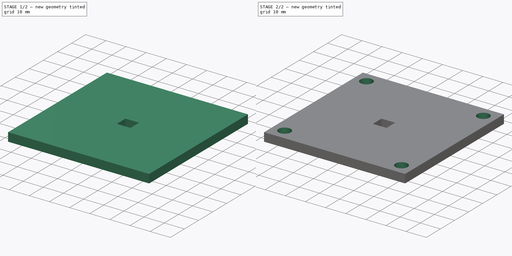
[diagram: build sequence overview — one tinted view per stage of 2, left to right]
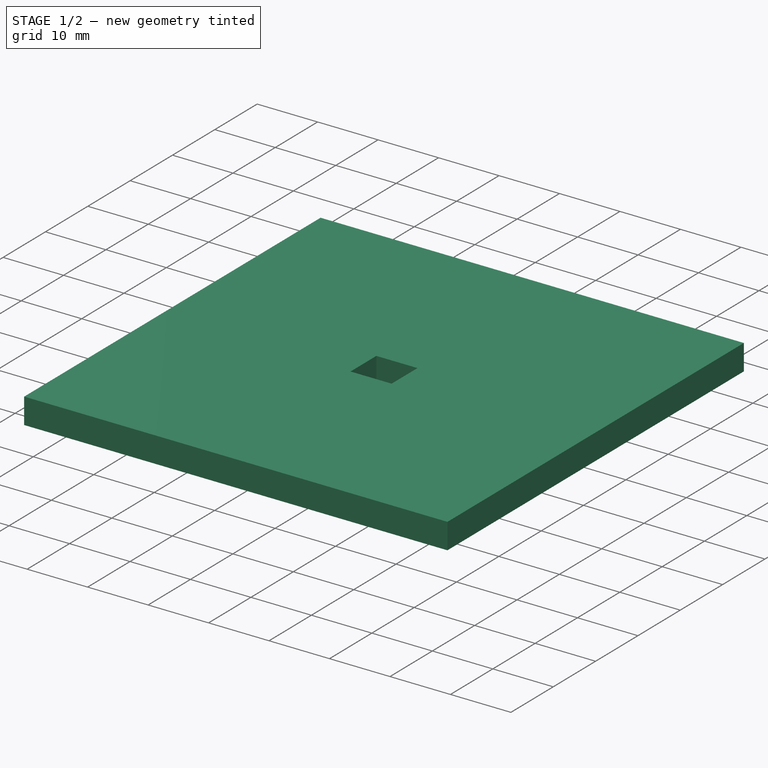
[diagram: stage 1 of 2 — iso view after this stage's code; geometry added in this stage tinted green]
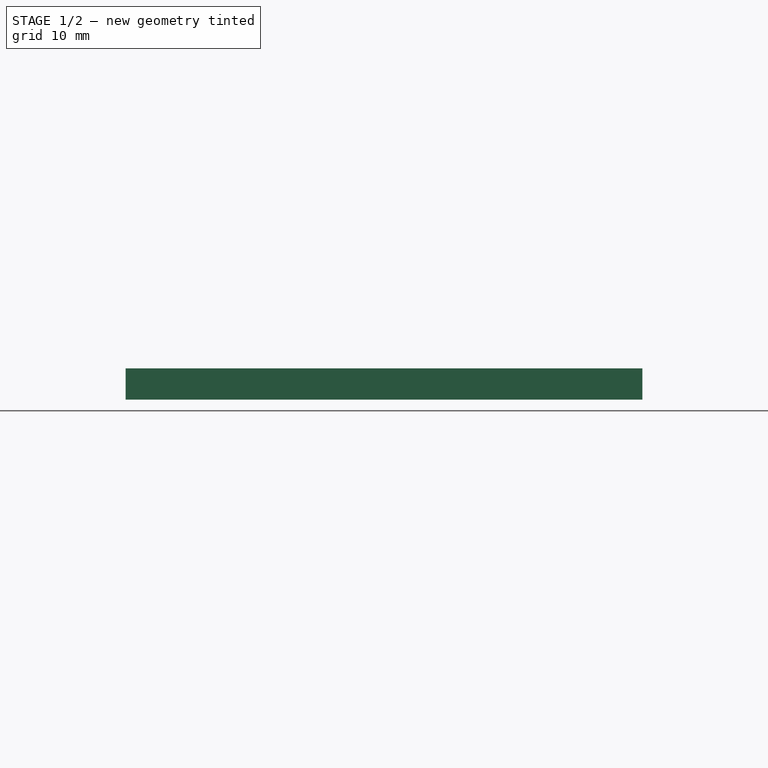
[diagram: stage 1 of 2 — front view after this stage's code; geometry added in this stage tinted green]
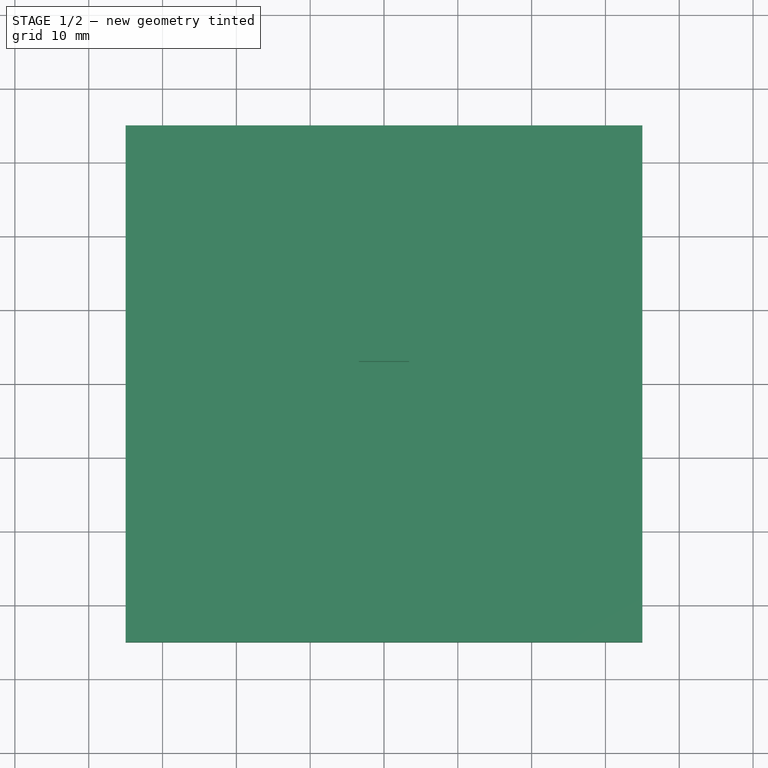
[diagram: stage 1 of 2 — top view after this stage's code; geometry added in this stage tinted green]
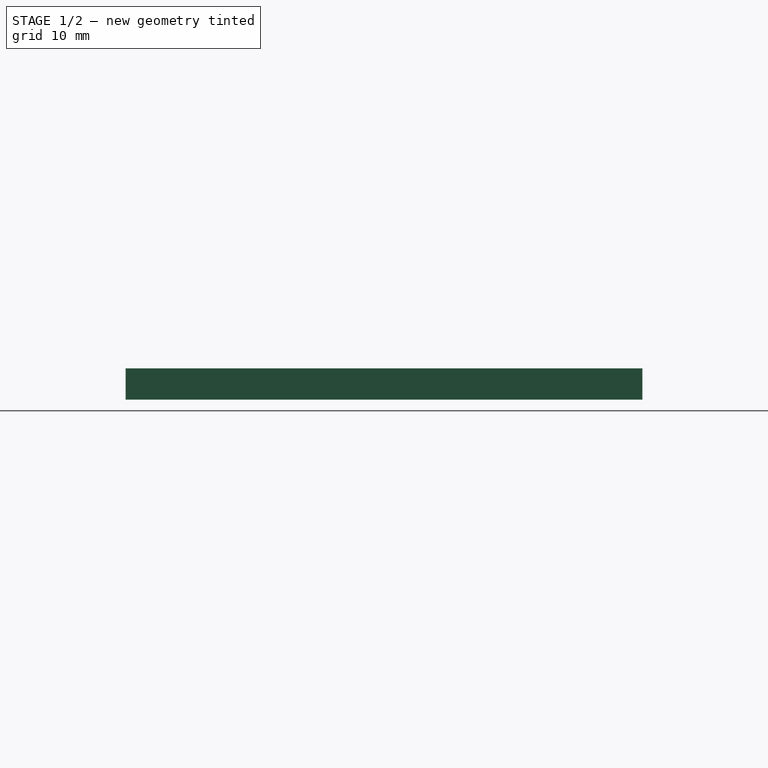
[diagram: stage 1 of 2 — right view after this stage's code; geometry added in this stage tinted green]
FCSTD DOCUMENT  (FreeCAD 0.19R)
Label: doom_base
License: All rights reserved
LicenseURL: http://en.wikipedia.org/wiki/All_rights_reserved
objects: Sketcher::SketchObject×4, PartDesign::Pocket×2, PartDesign::Pad×1, PartDesign::Hole×1, PartDesign::Body×1
note: 13 computed .brp shape members not serialized (recipe doc carries the construction recipe); baked Part::Feature solids carry a one-line shape summary decoded from their .brp

FEATURE [Sketcher::SketchObject] Sketch
  FullyConstrained = true
  MapMode = 5
  Support = -> [XY_Plane]
  sketch-geometry (4):
    g0: LineSegment StartX=-35 StartY=35 StartZ=0 EndX=35 EndY=35 EndZ=0
    g1: LineSegment StartX=35 StartY=35 StartZ=0 EndX=35 EndY=-35 EndZ=0
    g2: LineSegment StartX=35 StartY=-35 StartZ=0 EndX=-35 EndY=-35 EndZ=0
    g3: LineSegment StartX=-35 StartY=-35 StartZ=0 EndX=-35 EndY=35 EndZ=0
  constraints (12):
    c: Coincident(g0,g1)
    c: Coincident(g1,g2)
    c: Coincident(g2,g3)
    c: Coincident(g3,g0)
    c: Horizontal(g0)
    c: Horizontal(g2)
    c: Vertical(g1)
    c: Vertical(g3)
    c: DistanceX(g0,g0) = 70
    c: DistanceY(g3,g3) = 70
    c: Distance(g-1,g0) = 35
    c: Distance(g-1,g3) = 35
FEATURE [PartDesign::Pad] Pad
  Direction = (1,1,1)
  Length = 4.25
  Length2 = 100
  Profile = -> Sketch
  Type = 0
FEATURE [Sketcher::SketchObject] Sketch001
  ExternalGeometry = -> [Pad]
  FullyConstrained = true
  MapMode = 5
  Placement = pos=(0,0,4.25) rot=(0,0,1;0rad)
  Support = -> [Pad]
  sketch-geometry (4):
    g0: LineSegment StartX=-3.4 StartY=3.05 StartZ=0 EndX=3.4 EndY=3.05 EndZ=0
    g1: LineSegment StartX=3.4 StartY=3.05 StartZ=0 EndX=3.4 EndY=-3.05 EndZ=0
    g2: LineSegment StartX=3.4 StartY=-3.05 StartZ=0 EndX=-3.4 EndY=-3.05 EndZ=0
    g3: LineSegment StartX=-3.4 StartY=-3.05 StartZ=0 EndX=-3.4 EndY=3.05 EndZ=0
  constraints (12):
    c: Coincident(g0,g1)
    c: Coincident(g1,g2)
    c: Coincident(g2,g3)
    c: Coincident(g3,g0)
    c: Horizontal(g0)
    c: Horizontal(g2)
    c: Vertical(g1)
    c: Vertical(g3)
    c: DistanceX(g0,g0) = 6.8
    c: DistanceY(g3,g3) = 6.1
    c: Distance(g-1,g3) = 3.4
    c: Distance(g-1,g0) = 3.05
FEATURE [PartDesign::Pocket] Pocket
  BaseFeature = -> Pad
  Length = 3.75
  Length2 = 100
  Profile = -> Sketch001
  Type = 0
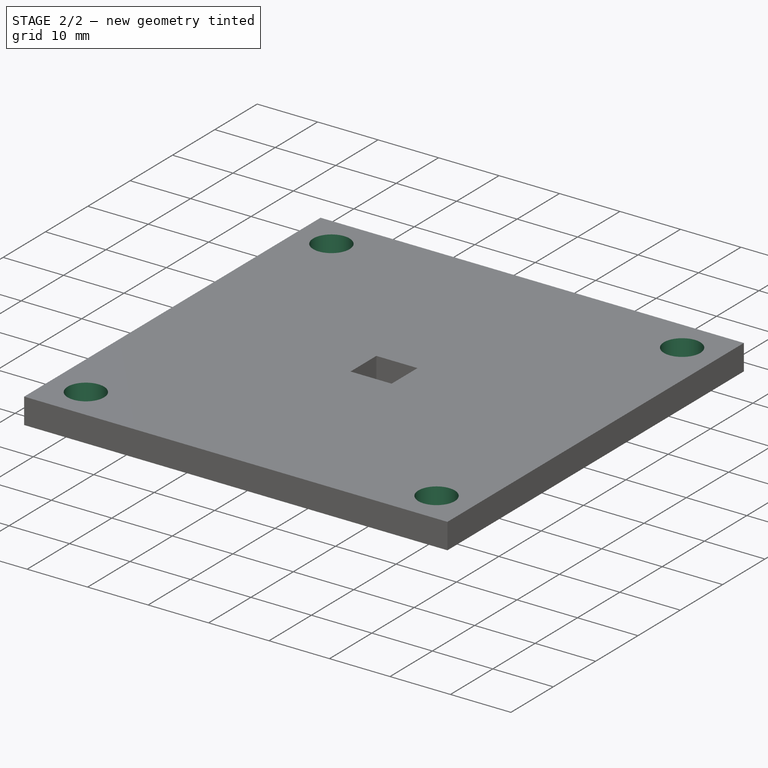
[diagram: stage 2 of 2 — iso view after this stage's code; geometry added in this stage tinted green]
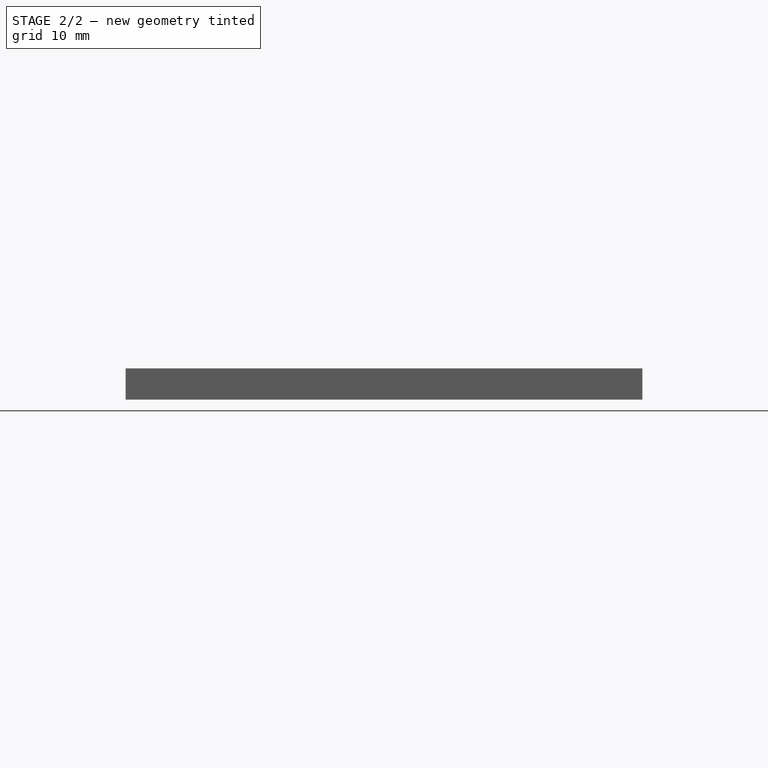
[diagram: stage 2 of 2 — front view after this stage's code; geometry added in this stage tinted green]
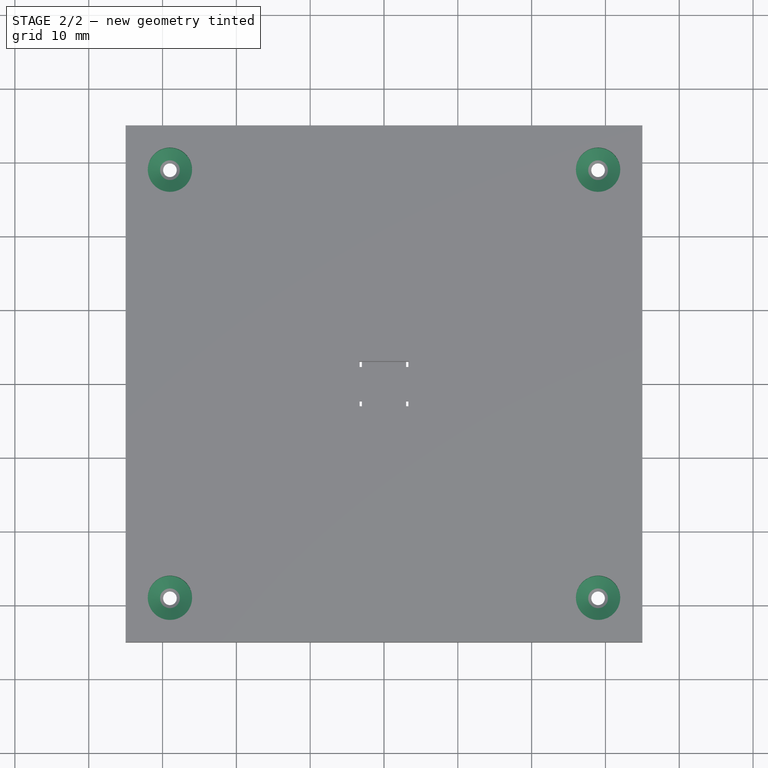
[diagram: stage 2 of 2 — top view after this stage's code; geometry added in this stage tinted green]
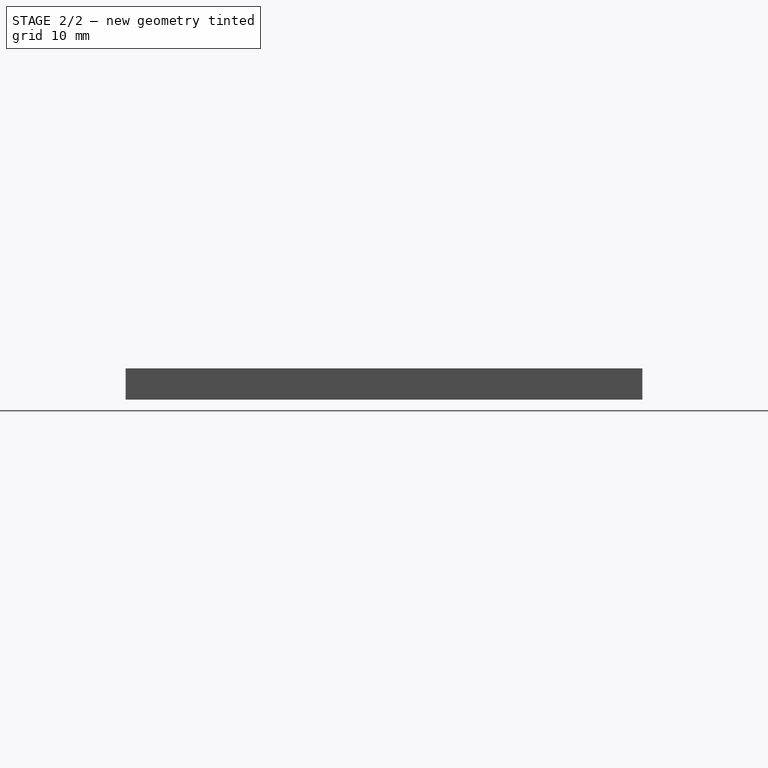
[diagram: stage 2 of 2 — right view after this stage's code; geometry added in this stage tinted green]
FEATURE [Sketcher::SketchObject] Sketch002
  ExternalGeometry = -> [Pocket]
  FullyConstrained = true
  MapMode = 5
  Placement = pos=(0,0,0.5) rot=(0,0,1;0rad)
  Support = -> [Pocket]
  sketch-geometry (16):
    g0: LineSegment StartX=-3.3 StartY=3.04 StartZ=0 EndX=-2.99 EndY=3.04 EndZ=0
    g1: LineSegment StartX=-2.99 StartY=3.04 StartZ=0 EndX=-2.99 EndY=2.33 EndZ=0
    g2: LineSegment StartX=-2.99 StartY=2.33 StartZ=0 EndX=-3.3 EndY=2.33 EndZ=0
    g3: LineSegment StartX=-3.3 StartY=2.33 StartZ=0 EndX=-3.3 EndY=3.04 EndZ=0
    g4: LineSegment StartX=2.99 StartY=3.04 StartZ=0 EndX=3.3 EndY=3.04 EndZ=0
    g5: LineSegment StartX=3.3 StartY=3.04 StartZ=0 EndX=3.3 EndY=2.33 EndZ=0
    g6: LineSegment StartX=3.3 StartY=2.33 StartZ=0 EndX=2.99 EndY=2.33 EndZ=0
    g7: LineSegment StartX=2.99 StartY=2.33 StartZ=0 EndX=2.99 EndY=3.04 EndZ=0
    g8: LineSegment StartX=-3.3 StartY=-2.33 StartZ=0 EndX=-2.99 EndY=-2.33 EndZ=0
    g9: LineSegment StartX=-2.99 StartY=-2.33 StartZ=0 EndX=-2.99 EndY=-3.04 EndZ=0
    g10: LineSegment StartX=-2.99 StartY=-3.04 StartZ=0 EndX=-3.3 EndY=-3.04 EndZ=0
    g11: LineSegment StartX=-3.3 StartY=-3.04 StartZ=0 EndX=-3.3 EndY=-2.33 EndZ=0
    g12: LineSegment StartX=2.99 StartY=-2.33 StartZ=0 EndX=3.3 EndY=-2.33 EndZ=0
    g13: LineSegment StartX=3.3 StartY=-2.33 StartZ=0 EndX=3.3 EndY=-3.04 EndZ=0
    g14: LineSegment StartX=3.3 StartY=-3.04 StartZ=0 EndX=2.99 EndY=-3.04 EndZ=0
    g15: LineSegment StartX=2.99 StartY=-3.04 StartZ=0 EndX=2.99 EndY=-2.33 EndZ=0
  constraints (52):
    c: Coincident(g0,g1)
    c: Coincident(g1,g2)
    c: Coincident(g2,g3)
    c: Coincident(g3,g0)
    c: Horizontal(g0)
    c: Horizontal(g2)
    c: Vertical(g1)
    c: Vertical(g3)
    c: DistanceY(g1,g1) = 0.71
    c: DistanceX(g0,g0) = 0.31
    c: Distance(g0,g-3) = 0.1
    c: Distance(g-6) = 6.8
    c: Distance(g-4,g0) = 0.01
    c: Coincident(g4,g5)
    c: Coincident(g5,g6)
    c: Coincident(g6,g7)
    c: Coincident(g7,g4)
    c: Horizontal(g4)
    c: Horizontal(g6)
    c: Vertical(g5)
    c: Vertical(g7)
    c: DistanceX(g4,g4) = 0.31
    c: DistanceY(g7,g7) = 0.71
    c: Coincident(g8,g9)
    c: Coincident(g9,g10)
    c: Coincident(g10,g11)
    c: Coincident(g11,g8)
    c: Horizontal(g8)
    c: Horizontal(g10)
    c: Vertical(g9)
    c: Vertical(g11)
    c: DistanceX(g8,g8) = 0.31
    c: DistanceY(g11,g11) = 0.71
    c: Distance(g-5) = 6.1
    c: Distance(g-5,g5) = 0.1
    c: Distance(g-5,g4) = 0.01
    c: Distance(g-6,g11) = 0.1
    c: Distance(g-6,g10) = 0.01
    c: Coincident(g12,g13)
    c: Coincident(g13,g14)
    c: Coincident(g14,g15)
    c: Coincident(g15,g12)
    c: Horizontal(g12)
    c: Horizontal(g14)
    c: Vertical(g13)
    c: Vertical(g15)
    c: DistanceX(g12,g12) = 0.31
    c: DistanceY(g15,g15) = 0.71
    c: Distance(g-6,g14) = 0.01
    c: Distance(g-6,g13) = 0.1
    c: Distance(g12,g8) = 5.98
    c: Distance(g8,g1) = 4.66
FEATURE [PartDesign::Pocket] Pocket001
  BaseFeature = -> Pocket
  Length = 27
  Length2 = 100
  Profile = -> Sketch002
  Type = 0
FEATURE [Sketcher::SketchObject] Sketch003
  ExternalGeometry = -> [Pocket001]
  FullyConstrained = true
  MapMode = 5
  Placement = pos=(0,0,4.25) rot=(0,0,1;0rad)
  Support = -> [Pocket001]
  sketch-geometry (4):
    g0: Circle CenterX=-29 CenterY=29 CenterZ=0 NormalX=0 NormalY=0 NormalZ=1 AngleXU=0 Radius=3
    g1: Circle CenterX=29 CenterY=29 CenterZ=0 NormalX=0 NormalY=0 NormalZ=1 AngleXU=0 Radius=3
    g2: Circle CenterX=29 CenterY=-29 CenterZ=0 NormalX=0 NormalY=0 NormalZ=1 AngleXU=0 Radius=3
    g3: Circle CenterX=-29 CenterY=-29 CenterZ=0 NormalX=0 NormalY=0 NormalZ=1 AngleXU=0 Radius=3
  constraints (12):
    c: Radius(g0) = 3
    c: Distance(g0,g-3) = 6
    c: Distance(g0,g-4) = 6
    c: Radius(g1) = 3
    c: Distance(g1,g-4) = 6
    c: Distance(g1,g-5) = 6
    c: Radius(g2) = 3
    c: Distance(g2,g-6) = 6
    c: Distance(g2,g-5) = 6
    c: Radius(g3) = 3
    c: Distance(g3,g-3) = 6
    c: Distance(g3,g-6) = 6
FEATURE [PartDesign::Hole] Hole
  BaseFeature = -> Pocket001
  Depth = 3
  DepthType = 0
  Diameter = 6
  DrillForDepth = false
  DrillPoint = 1
  DrillPointAngle = 118
  HoleCutCountersinkAngle = 90
  HoleCutCustomValues = false
  HoleCutDepth = 0
  HoleCutDiameter = 6.1
  HoleCutType = 0
  ModelActualThread = false
  Profile = -> Sketch003
  Tapered = false
  TaperedAngle = 90
  ThreadAngle = 0
  ThreadClass = 0
  ThreadCutOffInner = 0
  ThreadCutOffOuter = 0
  ThreadDirection = 0
  ThreadFit = 0
  ThreadPitch = 0
  ThreadSize = 0
  ThreadType = 0
  Threaded = false
FEATURE [PartDesign::Body] Body
  Group = -> [Sketch,Pad,Sketch001,Pocket,Sketch002,Pocket001,Sketch003,Hole]
  Origin = -> Origin
  Tip = -> Hole
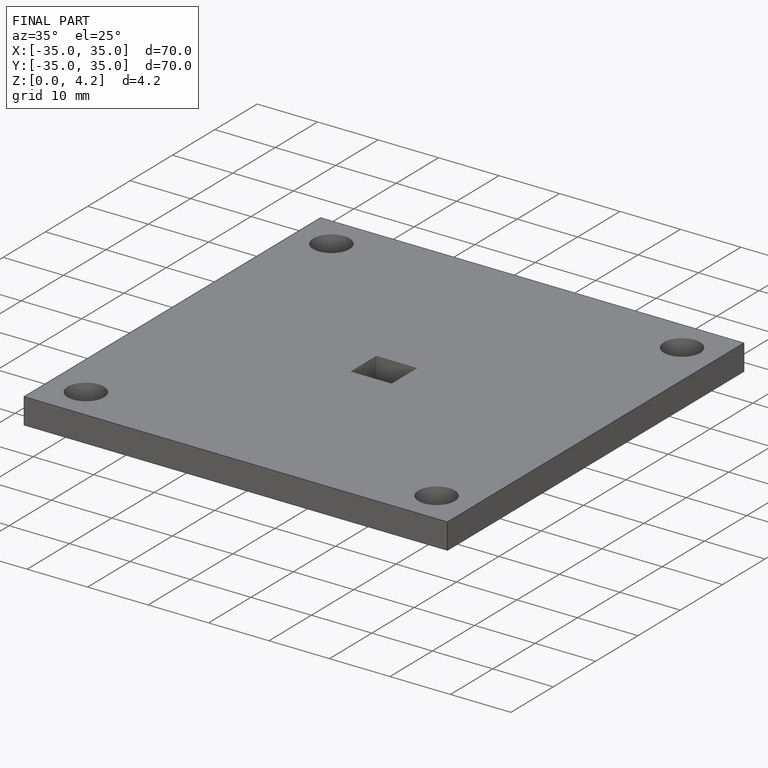
[diagram: finished part — iso view with bounding-box wireframe]
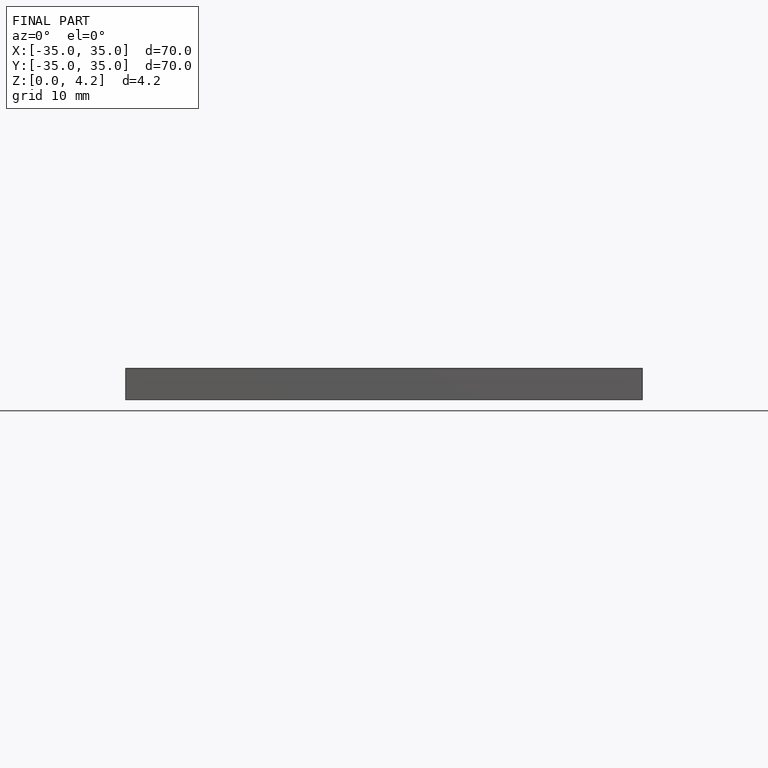
[diagram: finished part — front view with bounding-box wireframe]
